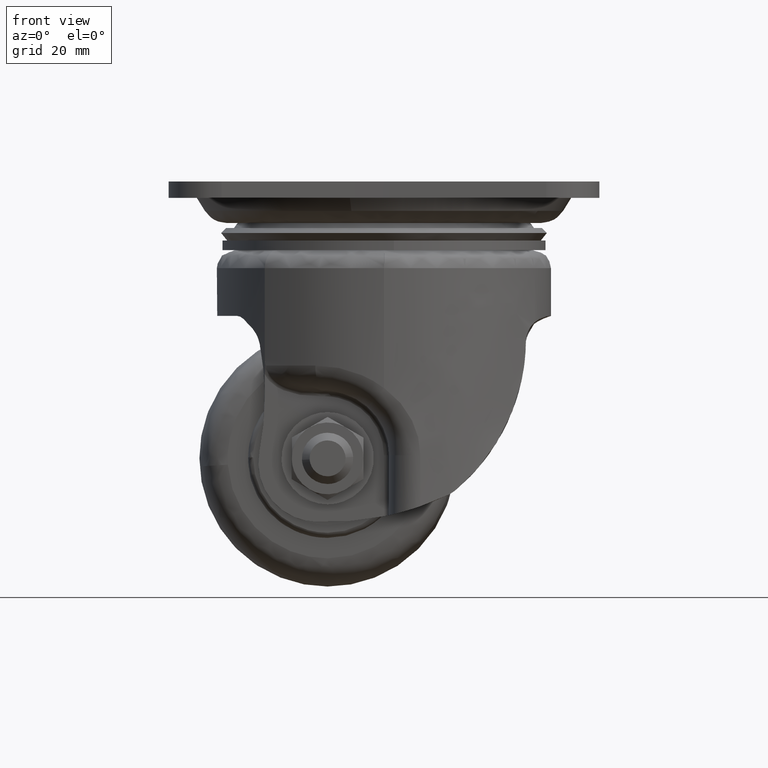
[diagram: clean part render]
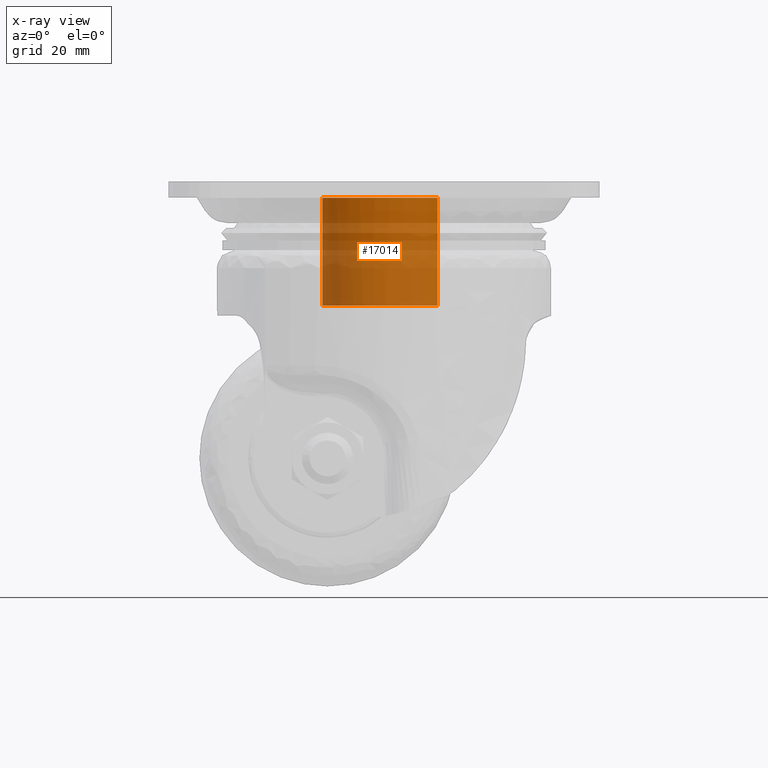
[diagram: x-ray — body ghosted, one internal face saturated and labeled with its STEP entity id]
A machine part, front view, then the same camera in x-ray: the body is ghosted and one INTERNAL B-rep face — a face not visible from any outside direction — is saturated and labeled: STEP entity #17014.
In plain terms, the highlighted face is a freeform B-spline surface patch.
Its self-contained STEP definition (entity closure, byte-faithful):
#16447=CARTESIAN_POINT('',(6.0,-10.392304845413300,-24.199971000000001));
#16448=VERTEX_POINT('',#16447);
#16647=CARTESIAN_POINT('',(10.444268517899371,-5.909082426740662,-24.199971000000001));
#16648=VERTEX_POINT('',#16647);
#16662=CARTESIAN_POINT('',(10.444268517899355,-5.909082426740655,-24.199971000000005));
#16663=CARTESIAN_POINT('',(8.833267652734010,-8.756517003421026,-24.199971000000005));
#16664=CARTESIAN_POINT('',(5.999999999999987,-10.392304845413269,-24.199971000000001));
#16672=(BOUNDED_CURVE()B_SPLINE_CURVE(2,(#16662,#16663,#16664),.UNSPECIFIED.,.F.,.U.)B_SPLINE_CURVE_WITH_KNOTS((3,3),(0.491857850213937,1.0),.UNSPECIFIED.)CURVE()GEOMETRIC_REPRESENTATION_ITEM()RATIONAL_B_SPLINE_CURVE((0.933030465477593,0.931921860662305,1.0))REPRESENTATION_ITEM(''));
#16673=EDGE_CURVE('',#16648,#16448,#16672,.T.);
#16725=CARTESIAN_POINT('',(-6.0,-10.392304845413300,-24.199971000000001));
#16726=VERTEX_POINT('',#16725);
#16727=CARTESIAN_POINT('',(5.999999999999987,-10.392304845413269,-24.199971000000001));
#16728=CARTESIAN_POINT('',(3.469447E-015,-13.856406460551007,-24.199971000000009));
#16729=CARTESIAN_POINT('',(-5.999999999999983,-10.392304845413269,-24.199971000000001));
#16737=(BOUNDED_CURVE()B_SPLINE_CURVE(2,(#16727,#16728,#16729),.UNSPECIFIED.,.F.,.U.)CURVE()GEOMETRIC_REPRESENTATION_ITEM()QUASI_UNIFORM_CURVE()RATIONAL_B_SPLINE_CURVE((1.0,0.866025403784439,1.0))REPRESENTATION_ITEM(''));
#16738=EDGE_CURVE('',#16448,#16726,#16737,.T.);
#16830=CARTESIAN_POINT('',(10.444274885732700,-5.909071171603626,-3.199999999999998));
#16831=VERTEX_POINT('',#16830);
#16845=CARTESIAN_POINT('',(-10.444274885732700,5.909071171603635,-3.199999999999998));
#16846=VERTEX_POINT('',#16845);
#16869=CARTESIAN_POINT('',(-12.0,5.143345E-015,-3.200000000000000));
#16870=VERTEX_POINT('',#16869);
#16871=CARTESIAN_POINT('',(-12.0,5.143345E-015,-3.200000000000000));
#16872=CARTESIAN_POINT('',(-11.999999999996810,3.159329246332721,-3.199999999999999));
#16873=CARTESIAN_POINT('',(-10.444274885732700,5.909071171603635,-3.199999999999998));
#16881=(BOUNDED_CURVE()B_SPLINE_CURVE(2,(#16871,#16872,#16873),.UNSPECIFIED.,.F.,.U.)B_SPLINE_CURVE_WITH_KNOTS((3,3),(0.0,0.083929824309549),.UNSPECIFIED.)CURVE()GEOMETRIC_REPRESENTATION_ITEM()RATIONAL_B_SPLINE_CURVE((1.0,0.901670094414115,0.869362682429812))REPRESENTATION_ITEM(''));
#16882=EDGE_CURVE('',#16870,#16846,#16881,.T.);
#16884=CARTESIAN_POINT('',(10.444274885732700,-5.909071171603626,-3.199999999999998));
#16885=CARTESIAN_POINT('',(9.919110385670805,-6.838061720276926,-3.199999999999975));
#16886=CARTESIAN_POINT('',(8.993595587071347,-8.058972688959493,-3.200000000000030));
#16887=CARTESIAN_POINT('',(7.404483668528444,-9.488734894733497,-3.199999999999981));
#16888=CARTESIAN_POINT('',(5.773051625252007,-10.603483447246660,-3.200000000000002));
#16889=CARTESIAN_POINT('',(3.727021123136483,-11.491541441541759,-3.200000000000002));
#16890=CARTESIAN_POINT('',(1.631445105361010,-11.936764644735151,-3.199999999999973));
#16891=CARTESIAN_POINT('',(-0.216702379319634,-12.039462551010560,-3.200000000000017));
#16892=CARTESIAN_POINT('',(-1.897845431379645,-11.890904730746829,-3.199999999999993));
#16893=CARTESIAN_POINT('',(-3.819503853481487,-11.437436414541040,-3.200000000000002));
#16894=CARTESIAN_POINT('',(-5.718746515168880,-10.632056647972719,-3.199999999999998));
#16895=CARTESIAN_POINT('',(-7.497804012340556,-9.438440065304759,-3.199999999999998));
#16896=CARTESIAN_POINT('',(-8.816769247482347,-8.197103177348032,-3.199999999999998));
#16897=CARTESIAN_POINT('',(-9.898969823177332,-6.851136938168240,-3.199999999999998));
#16898=CARTESIAN_POINT('',(-10.743688545036610,-5.437752116695150,-3.200000000000007));
#16899=CARTESIAN_POINT('',(-11.329347872734010,-4.032999942772376,-3.199999999999993));
#16900=CARTESIAN_POINT('',(-11.844202927965060,-2.257246080336914,-3.200000000000024));
#16901=CARTESIAN_POINT('',(-12.000232403274170,-0.944004490550992,-3.199999999999904));
#16902=CARTESIAN_POINT('',(-12.0,5.143345E-015,-3.200000000000000));
#16903=B_SPLINE_CURVE_WITH_KNOTS('',3,(#16884,#16885,#16886,#16887,#16888,#16889,#16890,#16891,#16892,#16893,#16894,#16895,#16896,#16897,#16898,#16899,#16900,#16901,#16902),.UNSPECIFIED.,.F.,.U.,(4,1,1,1,1,1,1,1,1,1,1,1,1,1,1,1,4),(0.000000012233595,3.201332065990354,4.555750804888398,6.402684350363483,9.111526656669515,11.204707114457310,12.805313555346521,14.652209344540299,16.252858764469789,18.715448927012041,20.808643388582240,22.655576439277802,24.133129238622889,25.980064394386250,27.580726152025509,28.688855354564520,31.520797827049389),.UNSPECIFIED.);
#16904=EDGE_CURVE('',#16831,#16870,#16903,.T.);
#16929=CARTESIAN_POINT('',(10.444274885732700,-5.909071171603626,-3.199999999999998));
#16930=CARTESIAN_POINT('',(10.444268517899371,-5.909082426740662,-24.199971000000001));
#16931=QUASI_UNIFORM_CURVE('',1,(#16929,#16930),.UNSPECIFIED.,.F.,.U.);
#16932=EDGE_CURVE('',#16831,#16648,#16931,.T.);
#16937=CARTESIAN_POINT('',(-10.444268517899410,5.909082426740697,-24.199971000000001));
#16938=VERTEX_POINT('',#16937);
#16952=CARTESIAN_POINT('',(-10.444274885732700,5.909071171603635,-3.199999999999998));
#16953=CARTESIAN_POINT('',(-10.444268517899410,5.909082426740697,-24.199971000000001));
#16954=QUASI_UNIFORM_CURVE('',1,(#16952,#16953),.UNSPECIFIED.,.F.,.U.);
#16955=EDGE_CURVE('',#16846,#16938,#16954,.T.);
#16960=CARTESIAN_POINT('',(10.444268351278801,-5.909082721241593,-2.675000724999999));
#16961=CARTESIAN_POINT('',(4.535185630037197,-16.353351072520393,-2.675000724999999));
#16962=CARTESIAN_POINT('',(-5.909082721241599,-10.444268351278790,-2.675000724999999));
#16963=CARTESIAN_POINT('',(-16.353351072520393,-4.535185630037192,-2.675000724999999));
#16964=CARTESIAN_POINT('',(-10.444268351278801,5.909082721241604,-2.675000724999999));
#16965=CARTESIAN_POINT('',(10.444268351278801,-5.909082721241593,-24.738095256875010));
#16966=CARTESIAN_POINT('',(4.535185630037197,-16.353351072520393,-24.738095256875013));
#16967=CARTESIAN_POINT('',(-5.909082721241599,-10.444268351278790,-24.738095256875010));
#16968=CARTESIAN_POINT('',(-16.353351072520393,-4.535185630037192,-24.738095256875013));
#16969=CARTESIAN_POINT('',(-10.444268351278801,5.909082721241604,-24.738095256875010));
#16977=(BOUNDED_SURFACE()B_SPLINE_SURFACE(2,1,((#16960,#16965),(#16961,#16966),(#16962,#16967),(#16963,#16968),(#16964,#16969)),.UNSPECIFIED.,.F.,.F.,.U.)B_SPLINE_SURFACE_WITH_KNOTS((3,2,3),(2,2),(0.0,19.882250993908560,39.764501987817113),(0.0,22.063094531875009),.UNSPECIFIED.)GEOMETRIC_REPRESENTATION_ITEM()RATIONAL_B_SPLINE_SURFACE(((1.0,1.0),(0.707106781186548,0.707106781186548),(1.0,1.0),(0.707106781186548,0.707106781186548),(1.0,1.0)))REPRESENTATION_ITEM('')SURFACE());
#16978=ORIENTED_EDGE('',*,*,#16882,.T.);
#16979=ORIENTED_EDGE('',*,*,#16955,.T.);
#16980=CARTESIAN_POINT('',(-12.000000000000220,0.0,-24.199971000000001));
#16981=VERTEX_POINT('',#16980);
#16982=CARTESIAN_POINT('',(-12.000000000000220,0.0,-24.199971000000001));
#16983=CARTESIAN_POINT('',(-12.000000000000121,3.159336160335919,-24.199970999999998));
#16984=CARTESIAN_POINT('',(-10.444268517899442,5.909082426740713,-24.199971000000005));
#16992=(BOUNDED_CURVE()B_SPLINE_CURVE(2,(#16982,#16983,#16984),.UNSPECIFIED.,.F.,.U.)B_SPLINE_CURVE_WITH_KNOTS((3,3),(0.0,0.491857850213944),.UNSPECIFIED.)CURVE()GEOMETRIC_REPRESENTATION_ITEM()RATIONAL_B_SPLINE_CURVE((1.0,0.934103543122133,0.933030465477593))REPRESENTATION_ITEM(''));
#16993=EDGE_CURVE('',#16981,#16938,#16992,.T.);
#16994=ORIENTED_EDGE('',*,*,#16993,.F.);
#16995=CARTESIAN_POINT('',(-5.999999999999983,-10.392304845413269,-24.199971000000001));
#16996=CARTESIAN_POINT('',(-12.000000000000002,-6.928203230275518,-24.199971000000005));
#16997=CARTESIAN_POINT('',(-12.0,5.143345E-015,-24.199971000000001));
#17005=(BOUNDED_CURVE()B_SPLINE_CURVE(2,(#16995,#16996,#16997),.UNSPECIFIED.,.F.,.U.)CURVE()GEOMETRIC_REPRESENTATION_ITEM()QUASI_UNIFORM_CURVE()RATIONAL_B_SPLINE_CURVE((1.0,0.866025403784438,1.0))REPRESENTATION_ITEM(''));
#17006=EDGE_CURVE('',#16726,#16981,#17005,.T.);
#17007=ORIENTED_EDGE('',*,*,#17006,.F.);
#17008=ORIENTED_EDGE('',*,*,#16738,.F.);
#17009=ORIENTED_EDGE('',*,*,#16673,.F.);
#17010=ORIENTED_EDGE('',*,*,#16932,.F.);
#17011=ORIENTED_EDGE('',*,*,#16904,.T.);
#17012=EDGE_LOOP('',(#16978,#16979,#16994,#17007,#17008,#17009,#17010,#17011));
#17013=FACE_OUTER_BOUND('',#17012,.T.);
#17014=ADVANCED_FACE('',(#17013),#16977,.T.);